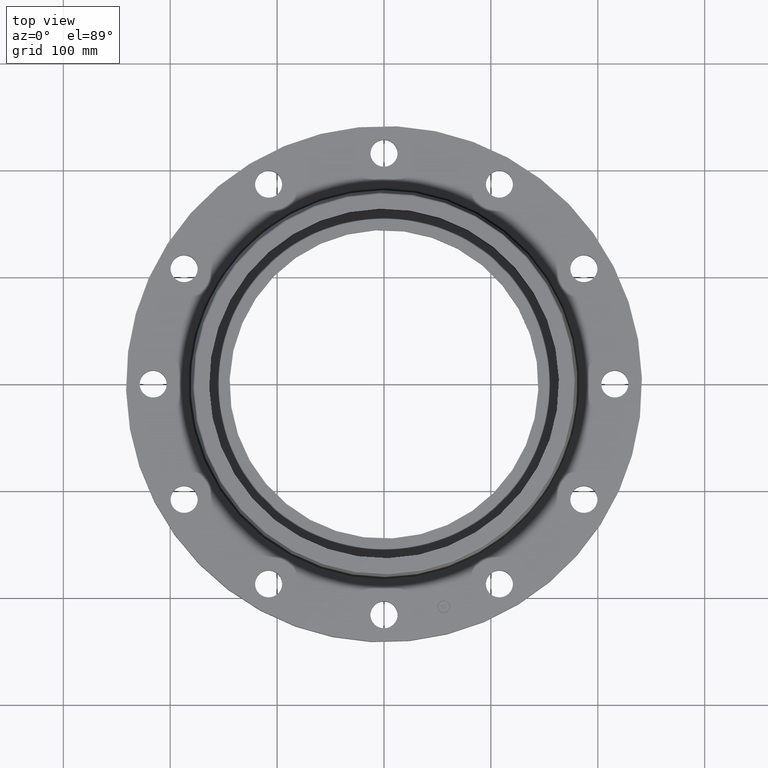
[diagram: clean part render]
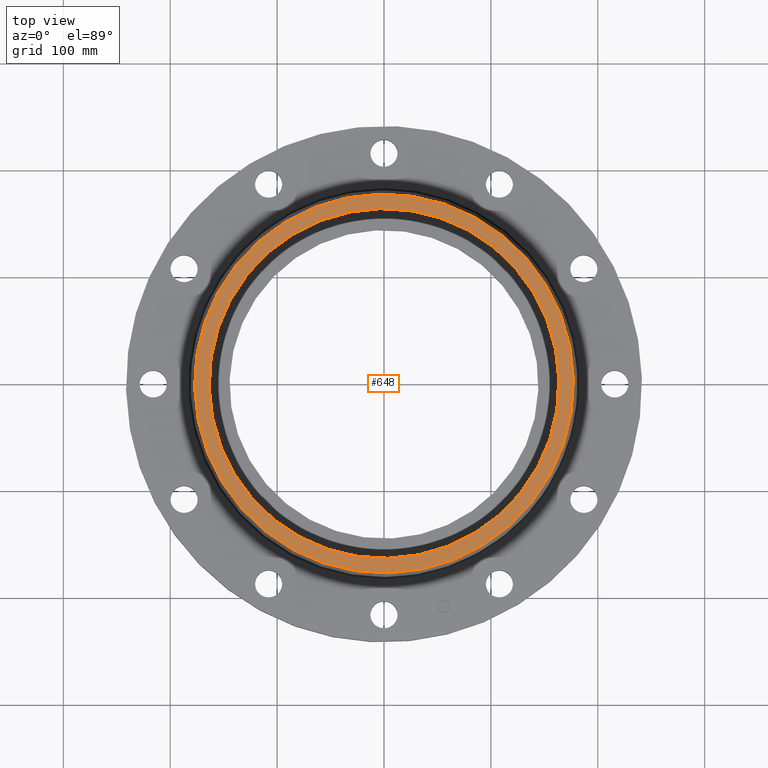
[diagram: same view with one face highlighted and labeled with its STEP entity id]
A machine part, top view. The second image highlights one B-rep face of the part: STEP entity #648.
In plain terms, the highlighted planar face has unit normal (0, 0, -1).
Its self-contained STEP definition (entity closure, byte-faithful):
#592=AXIS2_PLACEMENT_3D('Circle Axis2P3D',#590,#591,$) ;
#611=AXIS2_PLACEMENT_3D('Circle Axis2P3D',#609,#610,$) ;
#624=AXIS2_PLACEMENT_3D('Plane Axis2P3D',#621,#622,#623) ;
#632=AXIS2_PLACEMENT_3D('Circle Axis2P3D',#630,#631,$) ;
#641=AXIS2_PLACEMENT_3D('Circle Axis2P3D',#639,#640,$) ;
#587=CARTESIAN_POINT('Vertex',(3.34431431336,6.12172628816,2.12000000001)) ;
#590=CARTESIAN_POINT('Axis2P3D Location',(0.,0.,2.12000000001)) ;
#594=CARTESIAN_POINT('Vertex',(-3.34431431336,-6.12172628816,2.12000000001)) ;
#609=CARTESIAN_POINT('Axis2P3D Location',(0.,0.,2.12000000001)) ;
#621=CARTESIAN_POINT('Axis2P3D Location',(0.,6.9756699301,2.12000000001)) ;
#630=CARTESIAN_POINT('Axis2P3D Location',(-5.59482469102E-016,1.1189649382E-015,2.12000000001)) ;
#634=CARTESIAN_POINT('Vertex',(-5.6516316986,3.08750046862,2.12000000001)) ;
#636=CARTESIAN_POINT('Vertex',(5.6516316986,-3.08750046862,2.12000000001)) ;
#639=CARTESIAN_POINT('Axis2P3D Location',(1.1189649382E-015,0.,2.12000000001)) ;
#591=DIRECTION('Axis2P3D Direction',(0.,0.,-0.0393700787402)) ;
#610=DIRECTION('Axis2P3D Direction',(0.,0.,-0.0393700787402)) ;
#622=DIRECTION('Axis2P3D Direction',(0.,0.,-0.0393700787402)) ;
#623=DIRECTION('Axis2P3D XDirection',(0.0393700787402,0.,0.)) ;
#631=DIRECTION('Axis2P3D Direction',(0.,0.,-0.0393700787402)) ;
#640=DIRECTION('Axis2P3D Direction',(0.,0.,-0.0393700787402)) ;
#627=ORIENTED_EDGE('',*,*,#596,.F.) ;
#628=ORIENTED_EDGE('',*,*,#613,.F.) ;
#645=ORIENTED_EDGE('',*,*,#638,.T.) ;
#646=ORIENTED_EDGE('',*,*,#643,.T.) ;
#647=FACE_BOUND('',#644,.T.) ;
#648=ADVANCED_FACE('PartBody',(#629,#647),#625,.F.) ;
#593=CIRCLE('generated circle',#592,6.9756699301) ;
#612=CIRCLE('generated circle',#611,6.9756699301) ;
#633=CIRCLE('generated circle',#632,6.44000000003) ;
#642=CIRCLE('generated circle',#641,6.44000000003) ;
#596=EDGE_CURVE('',#588,#595,#593,.T.) ;
#613=EDGE_CURVE('',#595,#588,#612,.T.) ;
#638=EDGE_CURVE('',#635,#637,#633,.T.) ;
#643=EDGE_CURVE('',#637,#635,#642,.T.) ;
#626=EDGE_LOOP('',(#627,#628)) ;
#644=EDGE_LOOP('',(#645,#646)) ;
#629=FACE_OUTER_BOUND('',#626,.T.) ;
#625=PLANE('',#624) ;
#588=VERTEX_POINT('',#587) ;
#595=VERTEX_POINT('',#594) ;
#635=VERTEX_POINT('',#634) ;
#637=VERTEX_POINT('',#636) ;